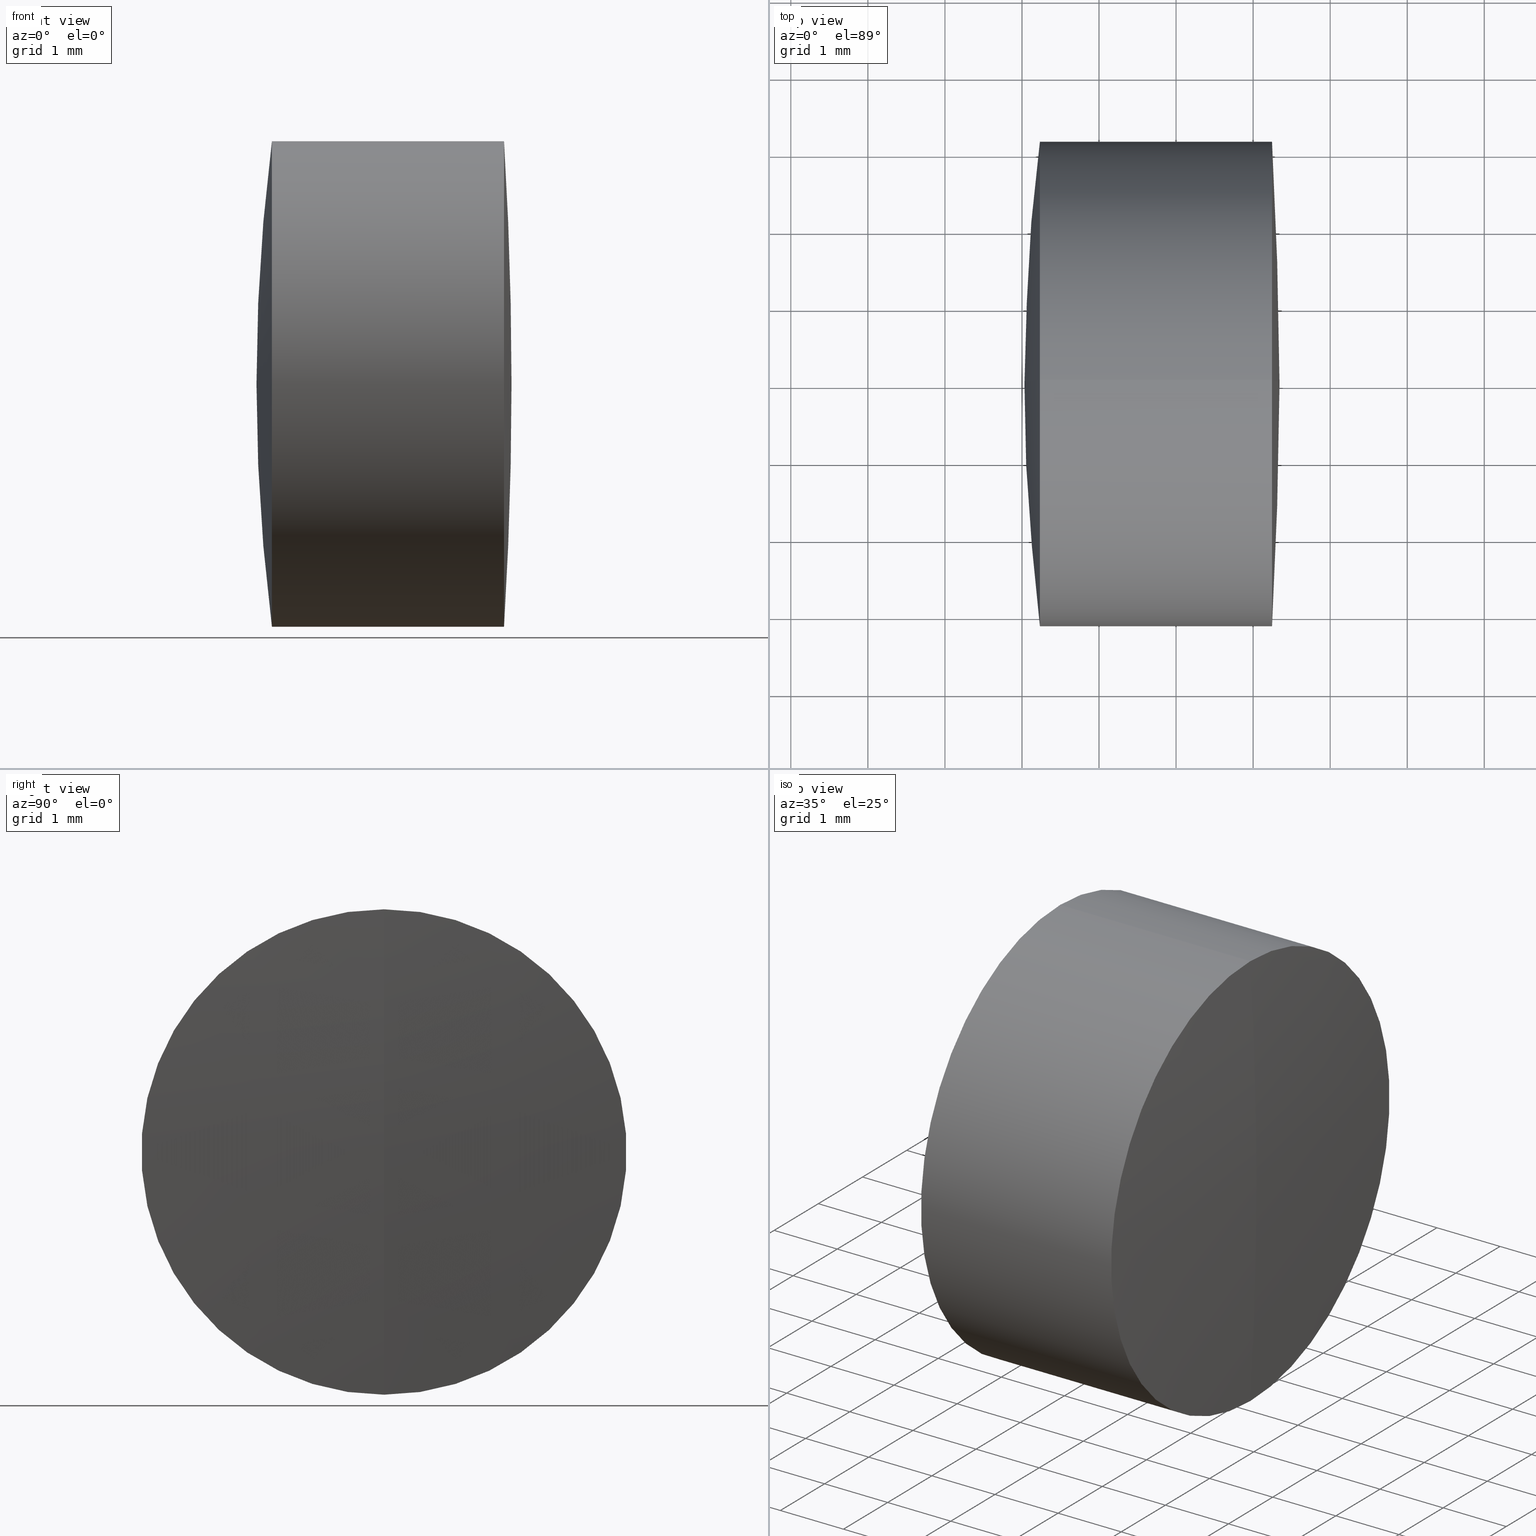
[diagram: canonical four-view strip — front | top / right | iso, engineering-drawing reading convention]
A machine part, canonical four-view strip (front | top / right | iso — engineering-drawing reading convention). The complete STEP part file that produces these views, byte-faithful:
ISO-10303-21;
HEADER;
FILE_DESCRIPTION (( 'STEP AP214' ),
    '1' );
FILE_NAME ('145012.STEP',
    '2019-05-07T06:51:21',
    ( 'user' ),
    ( '΢���й�' ),
    'SwSTEP 2.0',
    'SolidWorks 2016',
    '' );
FILE_SCHEMA (( 'AUTOMOTIVE_DESIGN' ));
ENDSEC;

DATA;
#1 = DIRECTION ( 'NONE',  ( 0.0000000000000000000, 1.000000000000000000, 0.0000000000000000000 ) ) ;
#2 = CIRCLE ( 'NONE', #291, 3.150000000000007000 ) ;
#3 = PRODUCT_DEFINITION_FORMATION_WITH_SPECIFIED_SOURCE ( '�κ�', '', #65, .NOT_KNOWN. ) ;
#4 = DIRECTION ( 'NONE',  ( 0.0000000000000000000, 0.0000000000000000000, 1.000000000000000000 ) ) ;
#5 = EDGE_LOOP ( 'NONE', ( #96, #287, #328 ) ) ;
#6 = CARTESIAN_POINT ( 'NONE',  ( 9.232637584155448000, -3.857637417314168100E-016, 3.150000000000004400 ) ) ;
#7 = MECHANICAL_DESIGN_GEOMETRIC_PRESENTATION_REPRESENTATION (  '', ( #283 ), #18 ) ;
#8 = DIRECTION ( 'NONE',  ( 0.0000000000000000000, 0.0000000000000000000, 1.000000000000000000 ) ) ;
#9 = DIRECTION ( 'NONE',  ( 0.0000000000000000000, -1.000000000000000000, 0.0000000000000000000 ) ) ;
#10 = EDGE_CURVE ( 'NONE', #230, #227, #37, .T. ) ;
#11 = EDGE_CURVE ( 'NONE', #227, #38, #315, .T. ) ;
#12 = ADVANCED_FACE ( 'NONE', ( #102 ), #176, .T. ) ;
#13 = ORIENTED_EDGE ( 'NONE', *, *, #10, .T. ) ;
#14 =( LENGTH_UNIT ( ) NAMED_UNIT ( * ) SI_UNIT ( .MILLI., .METRE. ) );
#15 = ORIENTED_EDGE ( 'NONE', *, *, #189, .F. ) ;
#16 = VERTEX_POINT ( 'NONE', #324 ) ;
#17 = VERTEX_POINT ( 'NONE', #128 ) ;
#18 =( GEOMETRIC_REPRESENTATION_CONTEXT ( 3 ) GLOBAL_UNCERTAINTY_ASSIGNED_CONTEXT ( ( #51 ) ) GLOBAL_UNIT_ASSIGNED_CONTEXT ( ( #14, #207, #184 ) ) REPRESENTATION_CONTEXT ( 'NONE', 'WORKASPACE' ) );
#19 = ORIENTED_EDGE ( 'NONE', *, *, #265, .T. ) ;
#20 = AXIS2_PLACEMENT_3D ( 'NONE', #55, #212, #28 ) ;
#21 = EDGE_CURVE ( 'NONE', #227, #289, #326, .T. ) ;
#22 = ORIENTED_EDGE ( 'NONE', *, *, #316, .F. ) ;
#23 = CARTESIAN_POINT ( 'NONE',  ( 10.62920690864784300, 0.0000000000000000000, 3.149999999999999900 ) ) ;
#24 =( NAMED_UNIT ( * ) PLANE_ANGLE_UNIT ( ) SI_UNIT ( $, .RADIAN. ) );
#25 = DIRECTION ( 'NONE',  ( 0.0000000000000000000, 0.0000000000000000000, 1.000000000000000000 ) ) ;
#26 = DIRECTION ( 'NONE',  ( 0.0000000000000000000, 1.000000000000000000, 0.0000000000000000000 ) ) ;
#27 = DIRECTION ( 'NONE',  ( 0.0000000000000000000, -1.224646799147353200E-016, 1.000000000000000000 ) ) ;
#28 = DIRECTION ( 'NONE',  ( 0.0000000000000000000, 0.0000000000000000000, 1.000000000000000000 ) ) ;
#29 = CARTESIAN_POINT ( 'NONE',  ( 12.24520291692307500, 0.0000000000000000000, 0.0000000000000000000 ) ) ;
#30 = ORIENTED_EDGE ( 'NONE', *, *, #203, .T. ) ;
#31 = ORIENTED_EDGE ( 'NONE', *, *, #170, .F. ) ;
#32 = ADVANCED_FACE ( 'NONE', ( #226 ), #43, .T. ) ;
#33 = PRODUCT_RELATED_PRODUCT_CATEGORY ( 'part', '', ( #65 ) ) ;
#34 = SURFACE_STYLE_USAGE ( .BOTH. , #196 ) ;
#35 = AXIS2_PLACEMENT_3D ( 'NONE', #215, #9, #192 ) ;
#36 = SPHERICAL_SURFACE ( 'NONE', #164, 51.06600000000000300 ) ;
#37 = LINE ( 'NONE', #274, #257 ) ;
#38 = VERTEX_POINT ( 'NONE', #6 ) ;
#39 = AXIS2_PLACEMENT_3D ( 'NONE', #78, #240, #52 ) ;
#40 = CIRCLE ( 'NONE', #241, 3.149999999999999900 ) ;
#41 = CYLINDRICAL_SURFACE ( 'NONE', #313, 3.150000000000002600 ) ;
#42 = SURFACE_STYLE_FILL_AREA ( #98 ) ;
#43 = SPHERICAL_SURFACE ( 'NONE', #89, 15.99499999999999600 ) ;
#44 = COLOUR_RGB ( '',1.000000000000000000, 1.000000000000000000, 1.000000000000000000 ) ;
#45 = ORIENTED_EDGE ( 'NONE', *, *, #225, .T. ) ;
#46 = SPHERICAL_SURFACE ( 'NONE', #263, 15.99499999999999600 ) ;
#47 = DIRECTION ( 'NONE',  ( 0.0000000000000000000, 0.0000000000000000000, 1.000000000000000000 ) ) ;
#48 = CARTESIAN_POINT ( 'NONE',  ( 10.62920690864783800, 0.0000000000000000000, 3.150000000000012300 ) ) ;
#49 = SURFACE_STYLE_USAGE ( .BOTH. , #208 ) ;
#50 = DIRECTION ( 'NONE',  ( -1.000000000000000000, -0.0000000000000000000, -0.0000000000000000000 ) ) ;
#51 = UNCERTAINTY_MEASURE_WITH_UNIT (LENGTH_MEASURE( 1.000000000000000100E-005 ), #14, 'distance_accuracy_value', 'NONE');
#52 = DIRECTION ( 'NONE',  ( 0.0000000000000000000, 0.0000000000000000000, 1.000000000000000000 ) ) ;
#53 = FACE_OUTER_BOUND ( 'NONE', #177, .T. ) ;
#54 = CARTESIAN_POINT ( 'NONE',  ( -5.052550805333070500, 0.0000000000000000000, 3.362352185866676200E-016 ) ) ;
#55 = CARTESIAN_POINT ( 'NONE',  ( 9.232637584155448000, 0.0000000000000000000, 0.0000000000000000000 ) ) ;
#56 = AXIS2_PLACEMENT_3D ( 'NONE', #132, #329, #104 ) ;
#57 = AXIS2_PLACEMENT_3D ( 'NONE', #191, #131, #188 ) ;
#58 = FACE_OUTER_BOUND ( 'NONE', #77, .T. ) ;
#59 = ADVANCED_FACE ( 'NONE', ( #58 ), #286, .T. ) ;
#60 = APPLICATION_PROTOCOL_DEFINITION ( 'draft international standard', 'automotive_design', 1998, #84 ) ;
#61 = CLOSED_SHELL ( 'NONE', ( #108, #276, #250, #306, #82, #166 ) ) ;
#62 =( NAMED_UNIT ( * ) PLANE_ANGLE_UNIT ( ) SI_UNIT ( $, .RADIAN. ) );
#63 = FILL_AREA_STYLE_COLOUR ( '', #178 ) ;
#64 = DIRECTION ( 'NONE',  ( -0.0000000000000000000, -1.000000000000000000, -0.0000000000000000000 ) ) ;
#65 = PRODUCT ( '145012', '145012', '', ( #252 ) ) ;
#66 = ORIENTED_EDGE ( 'NONE', *, *, #301, .F. ) ;
#67 = LINE ( 'NONE', #87, #220 ) ;
#68 = AXIS2_PLACEMENT_3D ( 'NONE', #29, #161, #8 ) ;
#69 = AXIS2_PLACEMENT_3D ( 'NONE', #268, #73, #234 ) ;
#70 = DIRECTION ( 'NONE',  ( -1.000000000000000000, -0.0000000000000000000, -0.0000000000000000000 ) ) ;
#71 = DIRECTION ( 'NONE',  ( 0.0000000000000000000, -1.000000000000000000, 0.0000000000000000000 ) ) ;
#72 = ORIENTED_EDGE ( 'NONE', *, *, #115, .F. ) ;
#73 = DIRECTION ( 'NONE',  ( 0.0000000000000000000, -1.000000000000000000, 0.0000000000000000000 ) ) ;
#74 = DIRECTION ( 'NONE',  ( -1.000000000000000000, -0.0000000000000000000, -0.0000000000000000000 ) ) ;
#75 = CARTESIAN_POINT ( 'NONE',  ( 12.24520291692307500, 3.857637417314163700E-016, -3.149999999999997700 ) ) ;
#76 = DIRECTION ( 'NONE',  ( 0.0000000000000000000, 1.224646799147353200E-016, -1.000000000000000000 ) ) ;
#77 = EDGE_LOOP ( 'NONE', ( #66, #138, #119 ) ) ;
#78 = CARTESIAN_POINT ( 'NONE',  ( 33.91544919466692700, 0.0000000000000000000, 6.675445889808647100E-017 ) ) ;
#79 = DIRECTION ( 'NONE',  ( -1.000000000000000000, -0.0000000000000000000, -0.0000000000000000000 ) ) ;
#80 = DIRECTION ( 'NONE',  ( 0.0000000000000000000, 0.0000000000000000000, 1.000000000000000000 ) ) ;
#81 = APPLICATION_CONTEXT ( 'automotive_design' ) ;
#82 = ADVANCED_FACE ( 'NONE', ( #204 ), #314, .T. ) ;
#83 = VERTEX_POINT ( 'NONE', #75 ) ;
#84 = APPLICATION_CONTEXT ( 'automotive_design' ) ;
#85 = SURFACE_STYLE_USAGE ( .BOTH. , #219 ) ;
#86 = CYLINDRICAL_SURFACE ( 'NONE', #201, 3.149999999999999900 ) ;
#87 = CARTESIAN_POINT ( 'NONE',  ( -0.5519199926577972300, 0.0000000000000000000, 3.150000000000002600 ) ) ;
#88 = EDGE_LOOP ( 'NONE', ( #305, #199, #273 ) ) ;
#89 = AXIS2_PLACEMENT_3D ( 'NONE', #214, #298, #211 ) ;
#90 = PRODUCT_DEFINITION_CONTEXT ( 'detailed design', #84, 'design' ) ;
#91 = EDGE_LOOP ( 'NONE', ( #72, #317, #245 ) ) ;
#92 = CIRCLE ( 'NONE', #299, 3.150000000000007000 ) ;
#93 = AXIS2_PLACEMENT_3D ( 'NONE', #139, #162, #300 ) ;
#94 = EDGE_CURVE ( 'NONE', #290, #83, #121, .T. ) ;
#95 = ORIENTED_EDGE ( 'NONE', *, *, #21, .F. ) ;
#96 = ORIENTED_EDGE ( 'NONE', *, *, #318, .F. ) ;
#97 = CARTESIAN_POINT ( 'NONE',  ( 10.62920690864784300, 3.857637417314162700E-016, -3.149999999999999900 ) ) ;
#98 = FILL_AREA_STYLE ('',( #238 ) ) ;
#99 = CARTESIAN_POINT ( 'NONE',  ( -0.8160621761658039000, 0.0000000000000000000, 3.149999999999999900 ) ) ;
#100 = CIRCLE ( 'NONE', #69, 51.06600000000000300 ) ;
#101 = DIRECTION ( 'NONE',  ( -1.000000000000000000, -0.0000000000000000000, -0.0000000000000000000 ) ) ;
#102 = FACE_OUTER_BOUND ( 'NONE', #346, .T. ) ;
#103 = CIRCLE ( 'NONE', #111, 15.99499999999999600 ) ;
#104 = DIRECTION ( 'NONE',  ( 0.0000000000000000000, 0.0000000000000000000, 1.000000000000000000 ) ) ;
#105 = ORIENTED_EDGE ( 'NONE', *, *, #316, .T. ) ;
#106 = CARTESIAN_POINT ( 'NONE',  ( 10.62920690864784000, 0.0000000000000000000, 0.0000000000000000000 ) ) ;
#107 = AXIS2_PLACEMENT_3D ( 'NONE', #159, #26, #322 ) ;
#108 = ADVANCED_FACE ( 'NONE', ( #243 ), #36, .T. ) ;
#109 =( LENGTH_UNIT ( ) NAMED_UNIT ( * ) SI_UNIT ( .MILLI., .METRE. ) );
#110 = MANIFOLD_SOLID_BREP ( '��ת1', #282 ) ;
#111 = AXIS2_PLACEMENT_3D ( 'NONE', #54, #187, #27 ) ;
#112 =( NAMED_UNIT ( * ) SI_UNIT ( $, .STERADIAN. ) SOLID_ANGLE_UNIT ( ) );
#113 = UNCERTAINTY_MEASURE_WITH_UNIT (LENGTH_MEASURE( 1.000000000000000100E-005 ), #235, 'distance_accuracy_value', 'NONE');
#114 = DIRECTION ( 'NONE',  ( -1.000000000000000000, -0.0000000000000000000, -0.0000000000000000000 ) ) ;
#115 = EDGE_CURVE ( 'NONE', #290, #16, #100, .T. ) ;
#116 = DIRECTION ( 'NONE',  ( 0.0000000000000000000, 0.0000000000000000000, 1.000000000000000000 ) ) ;
#117 = EDGE_LOOP ( 'NONE', ( #206, #45, #163 ) ) ;
#118 = SURFACE_STYLE_FILL_AREA ( #222 ) ;
#119 = ORIENTED_EDGE ( 'NONE', *, *, #265, .F. ) ;
#120 = AXIS2_PLACEMENT_3D ( 'NONE', #156, #270, #183 ) ;
#121 = CIRCLE ( 'NONE', #120, 51.06600000000000300 ) ;
#122 = CARTESIAN_POINT ( 'NONE',  ( -5.052550805333070500, 0.0000000000000000000, 3.362352185866676200E-016 ) ) ;
#123 = VERTEX_POINT ( 'NONE', #154 ) ;
#124 =( GEOMETRIC_REPRESENTATION_CONTEXT ( 3 ) GLOBAL_UNCERTAINTY_ASSIGNED_CONTEXT ( ( #343 ) ) GLOBAL_UNIT_ASSIGNED_CONTEXT ( ( #109, #134, #167 ) ) REPRESENTATION_CONTEXT ( 'NONE', 'WORKASPACE' ) );
#125 = DIRECTION ( 'NONE',  ( 0.0000000000000000000, 0.0000000000000000000, 1.000000000000000000 ) ) ;
#126 = DIRECTION ( 'NONE',  ( -1.000000000000000000, -0.0000000000000000000, -0.0000000000000000000 ) ) ;
#127 = SPHERICAL_SURFACE ( 'NONE', #169, 24.88300000000001000 ) ;
#128 = CARTESIAN_POINT ( 'NONE',  ( 10.94244919466692400, 0.0000000000000000000, 1.315646496204763000E-015 ) ) ;
#129 = DIRECTION ( 'NONE',  ( 0.0000000000000000000, -1.000000000000000000, -1.224646799147353200E-016 ) ) ;
#130 = EDGE_CURVE ( 'NONE', #230, #145, #256, .T. ) ;
#131 = DIRECTION ( 'NONE',  ( -0.0000000000000000000, -1.000000000000000000, -0.0000000000000000000 ) ) ;
#132 = CARTESIAN_POINT ( 'NONE',  ( 9.232637584155448000, 0.0000000000000000000, 0.0000000000000000000 ) ) ;
#133 = ORIENTED_EDGE ( 'NONE', *, *, #130, .T. ) ;
#134 =( NAMED_UNIT ( * ) PLANE_ANGLE_UNIT ( ) SI_UNIT ( $, .RADIAN. ) );
#135 = CARTESIAN_POINT ( 'NONE',  ( 0.0000000000000000000, 0.0000000000000000000, 0.0000000000000000000 ) ) ;
#136 = VECTOR ( 'NONE', #74, 1000.000000000000000 ) ;
#137 = CARTESIAN_POINT ( 'NONE',  ( -5.052550805333070500, 0.0000000000000000000, 3.362352185866676200E-016 ) ) ;
#138 = ORIENTED_EDGE ( 'NONE', *, *, #318, .T. ) ;
#139 = CARTESIAN_POINT ( 'NONE',  ( -5.052550805333070500, 0.0000000000000000000, 3.362352185866676200E-016 ) ) ;
#140 = DIRECTION ( 'NONE',  ( 0.0000000000000000000, 0.0000000000000000000, 1.000000000000000000 ) ) ;
#141 = AXIS2_PLACEMENT_3D ( 'NONE', #297, #271, #185 ) ;
#142 = VERTEX_POINT ( 'NONE', #48 ) ;
#143 = LINE ( 'NONE', #99, #158 ) ;
#144 = AXIS2_PLACEMENT_3D ( 'NONE', #323, #129, #76 ) ;
#145 = VERTEX_POINT ( 'NONE', #23 ) ;
#146 = AXIS2_PLACEMENT_3D ( 'NONE', #205, #320, #232 ) ;
#147 = EDGE_CURVE ( 'NONE', #16, #83, #175, .T. ) ;
#148 = SPHERICAL_SURFACE ( 'NONE', #146, 51.06600000000000300 ) ;
#149 = VERTEX_POINT ( 'NONE', #294 ) ;
#150 = ORIENTED_EDGE ( 'NONE', *, *, #147, .T. ) ;
#151 = DIRECTION ( 'NONE',  ( 0.0000000000000000000, 0.0000000000000000000, 1.000000000000000000 ) ) ;
#152 = SPHERICAL_SURFACE ( 'NONE', #93, 15.99499999999999600 ) ;
#153 = DIRECTION ( 'NONE',  ( -1.000000000000000000, -0.0000000000000000000, -0.0000000000000000000 ) ) ;
#154 = CARTESIAN_POINT ( 'NONE',  ( 10.94244919466692400, 0.0000000000000000000, 1.315646496204763000E-015 ) ) ;
#155 = CARTESIAN_POINT ( 'NONE',  ( 10.62920690864784000, 0.0000000000000000000, 0.0000000000000000000 ) ) ;
#156 = CARTESIAN_POINT ( 'NONE',  ( -38.72355080533307600, 0.0000000000000000000, 0.0000000000000000000 ) ) ;
#157 = ORIENTED_EDGE ( 'NONE', *, *, #115, .T. ) ;
#158 = VECTOR ( 'NONE', #79, 1000.000000000000000 ) ;
#159 = CARTESIAN_POINT ( 'NONE',  ( -5.052550805333070500, 0.0000000000000000000, 3.362352185866676200E-016 ) ) ;
#160 = DIRECTION ( 'NONE',  ( 0.0000000000000000000, 1.000000000000000000, 0.0000000000000000000 ) ) ;
#161 = DIRECTION ( 'NONE',  ( -1.000000000000000000, -0.0000000000000000000, -0.0000000000000000000 ) ) ;
#162 = DIRECTION ( 'NONE',  ( 0.0000000000000000000, 1.000000000000000000, 0.0000000000000000000 ) ) ;
#163 = ORIENTED_EDGE ( 'NONE', *, *, #189, .T. ) ;
#164 = AXIS2_PLACEMENT_3D ( 'NONE', #209, #160, #125 ) ;
#165 = ORIENTED_EDGE ( 'NONE', *, *, #203, .F. ) ;
#166 = ADVANCED_FACE ( 'NONE', ( #53 ), #148, .T. ) ;
#167 =( NAMED_UNIT ( * ) SI_UNIT ( $, .STERADIAN. ) SOLID_ANGLE_UNIT ( ) );
#168 = AXIS2_PLACEMENT_3D ( 'NONE', #213, #244, #4 ) ;
#169 = AXIS2_PLACEMENT_3D ( 'NONE', #224, #64, #197 ) ;
#170 = EDGE_CURVE ( 'NONE', #83, #149, #174, .T. ) ;
#171 = EDGE_LOOP ( 'NONE', ( #310, #133, #337, #229 ) ) ;
#172 = EDGE_LOOP ( 'NONE', ( #277, #190, #302 ) ) ;
#173 = CIRCLE ( 'NONE', #35, 15.99499999999999600 ) ;
#174 = LINE ( 'NONE', #321, #136 ) ;
#175 = CIRCLE ( 'NONE', #275, 3.149999999999997700 ) ;
#176 = SPHERICAL_SURFACE ( 'NONE', #57, 24.88300000000001000 ) ;
#177 = EDGE_LOOP ( 'NONE', ( #269, #157, #22 ) ) ;
#178 = COLOUR_RGB ( '',1.000000000000000000, 1.000000000000000000, 1.000000000000000000 ) ;
#179 = STYLED_ITEM ( 'NONE', ( #344 ), #110 ) ;
#180 = CARTESIAN_POINT ( 'NONE',  ( 10.62920690864784300, 0.0000000000000000000, 0.0000000000000000000 ) ) ;
#181 =( NAMED_UNIT ( * ) SI_UNIT ( $, .STERADIAN. ) SOLID_ANGLE_UNIT ( ) );
#182 = DIRECTION ( 'NONE',  ( 1.000000000000000000, 0.0000000000000000000, 0.0000000000000000000 ) ) ;
#183 = DIRECTION ( 'NONE',  ( 0.0000000000000000000, -1.224646799147353000E-016, 1.000000000000000000 ) ) ;
#184 =( NAMED_UNIT ( * ) SI_UNIT ( $, .STERADIAN. ) SOLID_ANGLE_UNIT ( ) );
#185 = DIRECTION ( 'NONE',  ( 0.0000000000000000000, 0.0000000000000000000, 1.000000000000000000 ) ) ;
#186 = AXIS2_PLACEMENT_3D ( 'NONE', #267, #71, #233 ) ;
#187 = DIRECTION ( 'NONE',  ( -0.0000000000000000000, 1.000000000000000000, 1.224646799147353200E-016 ) ) ;
#188 = DIRECTION ( 'NONE',  ( 0.0000000000000000000, 0.0000000000000000000, -1.000000000000000000 ) ) ;
#189 = EDGE_CURVE ( 'NONE', #142, #149, #2, .T. ) ;
#190 = ORIENTED_EDGE ( 'NONE', *, *, #246, .T. ) ;
#191 = CARTESIAN_POINT ( 'NONE',  ( 33.91544919466692700, 0.0000000000000000000, 6.675445889808647100E-017 ) ) ;
#192 = DIRECTION ( 'NONE',  ( 0.0000000000000000000, 0.0000000000000000000, -1.000000000000000000 ) ) ;
#193 = ADVANCED_FACE ( 'NONE', ( #272 ), #86, .T. ) ;
#194 = APPLICATION_PROTOCOL_DEFINITION ( 'draft international standard', 'automotive_design', 1998, #81 ) ;
#195 = ORIENTED_EDGE ( 'NONE', *, *, #170, .T. ) ;
#196 = SURFACE_SIDE_STYLE ('',( #118 ) ) ;
#197 = DIRECTION ( 'NONE',  ( 0.0000000000000000000, 0.0000000000000000000, -1.000000000000000000 ) ) ;
#198 = PRESENTATION_LAYER_ASSIGNMENT (  '', '', ( #179 ) ) ;
#199 = ORIENTED_EDGE ( 'NONE', *, *, #303, .T. ) ;
#200 = STYLED_ITEM ( 'NONE', ( #258 ), #280 ) ;
#201 = AXIS2_PLACEMENT_3D ( 'NONE', #296, #126, #25 ) ;
#202 = EDGE_LOOP ( 'NONE', ( #31, #105, #30, #292 ) ) ;
#203 = EDGE_CURVE ( 'NONE', #16, #142, #67, .T. ) ;
#204 = FACE_OUTER_BOUND ( 'NONE', #202, .T. ) ;
#205 = CARTESIAN_POINT ( 'NONE',  ( -38.72355080533307600, 0.0000000000000000000, 0.0000000000000000000 ) ) ;
#206 = ORIENTED_EDGE ( 'NONE', *, *, #246, .F. ) ;
#207 =( NAMED_UNIT ( * ) PLANE_ANGLE_UNIT ( ) SI_UNIT ( $, .RADIAN. ) );
#208 = SURFACE_SIDE_STYLE ('',( #42 ) ) ;
#209 = CARTESIAN_POINT ( 'NONE',  ( -38.72355080533307600, 0.0000000000000000000, 0.0000000000000000000 ) ) ;
#210 = UNCERTAINTY_MEASURE_WITH_UNIT (LENGTH_MEASURE( 1.000000000000000100E-005 ), #253, 'distance_accuracy_value', 'NONE');
#211 = DIRECTION ( 'NONE',  ( 0.0000000000000000000, 0.0000000000000000000, 1.000000000000000000 ) ) ;
#212 = DIRECTION ( 'NONE',  ( -1.000000000000000000, -0.0000000000000000000, -0.0000000000000000000 ) ) ;
#213 = CARTESIAN_POINT ( 'NONE',  ( -0.8160621761658039000, 0.0000000000000000000, 0.0000000000000000000 ) ) ;
#214 = CARTESIAN_POINT ( 'NONE',  ( -5.052550805333070500, 0.0000000000000000000, 3.362352185866676200E-016 ) ) ;
#215 = CARTESIAN_POINT ( 'NONE',  ( -5.052550805333070500, 0.0000000000000000000, 3.362352185866676200E-016 ) ) ;
#216 = MECHANICAL_DESIGN_GEOMETRIC_PRESENTATION_REPRESENTATION (  '', ( #179 ), #231 ) ;
#217 = ADVANCED_FACE ( 'NONE', ( #288 ), #127, .T. ) ;
#218 = ORIENTED_EDGE ( 'NONE', *, *, #11, .T. ) ;
#219 = SURFACE_SIDE_STYLE ('',( #327 ) ) ;
#220 = VECTOR ( 'NONE', #284, 1000.000000000000000 ) ;
#221 = PRESENTATION_LAYER_ASSIGNMENT (  '', '', ( #200 ) ) ;
#222 = FILL_AREA_STYLE ('',( #63 ) ) ;
#223 = AXIS2_PLACEMENT_3D ( 'NONE', #122, #239, #338 ) ;
#224 = CARTESIAN_POINT ( 'NONE',  ( 33.91544919466692700, 0.0000000000000000000, 6.675445889808647100E-017 ) ) ;
#225 = EDGE_CURVE ( 'NONE', #17, #142, #260, .T. ) ;
#226 = FACE_OUTER_BOUND ( 'NONE', #5, .T. ) ;
#227 = VERTEX_POINT ( 'NONE', #255 ) ;
#228 = CIRCLE ( 'NONE', #56, 3.149999999999999900 ) ;
#229 = ORIENTED_EDGE ( 'NONE', *, *, #11, .F. ) ;
#230 = VERTEX_POINT ( 'NONE', #97 ) ;
#231 =( GEOMETRIC_REPRESENTATION_CONTEXT ( 3 ) GLOBAL_UNCERTAINTY_ASSIGNED_CONTEXT ( ( #113 ) ) GLOBAL_UNIT_ASSIGNED_CONTEXT ( ( #235, #24, #181 ) ) REPRESENTATION_CONTEXT ( 'NONE', 'WORKASPACE' ) );
#232 = DIRECTION ( 'NONE',  ( 0.0000000000000000000, 0.0000000000000000000, 1.000000000000000000 ) ) ;
#233 = DIRECTION ( 'NONE',  ( 0.0000000000000000000, 0.0000000000000000000, -1.000000000000000000 ) ) ;
#234 = DIRECTION ( 'NONE',  ( 0.0000000000000000000, 0.0000000000000000000, -1.000000000000000000 ) ) ;
#235 =( LENGTH_UNIT ( ) NAMED_UNIT ( * ) SI_UNIT ( .MILLI., .METRE. ) );
#236 = DIRECTION ( 'NONE',  ( 0.0000000000000000000, 0.0000000000000000000, 1.000000000000000000 ) ) ;
#237 = MECHANICAL_DESIGN_GEOMETRIC_PRESENTATION_REPRESENTATION (  '', ( #200 ), #262 ) ;
#238 = FILL_AREA_STYLE_COLOUR ( '', #325 ) ;
#239 = DIRECTION ( 'NONE',  ( -0.0000000000000000000, 1.000000000000000000, 1.224646799147353200E-016 ) ) ;
#240 = DIRECTION ( 'NONE',  ( 0.0000000000000000000, 1.000000000000000000, -0.0000000000000000000 ) ) ;
#241 = AXIS2_PLACEMENT_3D ( 'NONE', #308, #114, #281 ) ;
#242 = CIRCLE ( 'NONE', #144, 24.88300000000001000 ) ;
#243 = FACE_OUTER_BOUND ( 'NONE', #91, .T. ) ;
#244 = DIRECTION ( 'NONE',  ( -1.000000000000000000, -0.0000000000000000000, -0.0000000000000000000 ) ) ;
#245 = ORIENTED_EDGE ( 'NONE', *, *, #147, .F. ) ;
#246 = EDGE_CURVE ( 'NONE', #17, #149, #311, .T. ) ;
#247 = FACE_OUTER_BOUND ( 'NONE', #342, .T. ) ;
#248 = ORIENTED_EDGE ( 'NONE', *, *, #339, .T. ) ;
#249 = PRODUCT_DEFINITION_SHAPE ( 'NONE', 'NONE',  #333 ) ;
#250 = ADVANCED_FACE ( 'NONE', ( #330 ), #46, .F. ) ;
#251 = FACE_OUTER_BOUND ( 'NONE', #117, .T. ) ;
#252 = PRODUCT_CONTEXT ( 'NONE', #81, 'mechanical' ) ;
#253 =( LENGTH_UNIT ( ) NAMED_UNIT ( * ) SI_UNIT ( .MILLI., .METRE. ) );
#254 = CARTESIAN_POINT ( 'NONE',  ( 9.032449194666918800, 0.0000000000000000000, -1.456889856261093500E-015 ) ) ;
#255 = CARTESIAN_POINT ( 'NONE',  ( 9.232637584155448000, 0.0000000000000000000, -3.150000000000004400 ) ) ;
#256 = CIRCLE ( 'NONE', #261, 3.149999999999999900 ) ;
#257 = VECTOR ( 'NONE', #101, 1000.000000000000000 ) ;
#258 = PRESENTATION_STYLE_ASSIGNMENT (( #85 ) ) ;
#259 = ORIENTED_EDGE ( 'NONE', *, *, #303, .F. ) ;
#260 = CIRCLE ( 'NONE', #186, 15.99499999999999600 ) ;
#261 = AXIS2_PLACEMENT_3D ( 'NONE', #180, #345, #151 ) ;
#262 =( GEOMETRIC_REPRESENTATION_CONTEXT ( 3 ) GLOBAL_UNCERTAINTY_ASSIGNED_CONTEXT ( ( #210 ) ) GLOBAL_UNIT_ASSIGNED_CONTEXT ( ( #253, #62, #112 ) ) REPRESENTATION_CONTEXT ( 'NONE', 'WORKASPACE' ) );
#263 = AXIS2_PLACEMENT_3D ( 'NONE', #137, #1, #140 ) ;
#264 = EDGE_LOOP ( 'NONE', ( #150, #195, #15, #165 ) ) ;
#265 = EDGE_CURVE ( 'NONE', #145, #230, #40, .T. ) ;
#266 = CARTESIAN_POINT ( 'NONE',  ( 12.24520291692307500, 0.0000000000000000000, 0.0000000000000000000 ) ) ;
#267 = CARTESIAN_POINT ( 'NONE',  ( -5.052550805333070500, 0.0000000000000000000, 3.362352185866676200E-016 ) ) ;
#268 = CARTESIAN_POINT ( 'NONE',  ( -38.72355080533307600, 0.0000000000000000000, 0.0000000000000000000 ) ) ;
#269 = ORIENTED_EDGE ( 'NONE', *, *, #94, .F. ) ;
#270 = DIRECTION ( 'NONE',  ( -0.0000000000000000000, 1.000000000000000000, 1.224646799147353200E-016 ) ) ;
#271 = DIRECTION ( 'NONE',  ( -1.000000000000000000, -0.0000000000000000000, -0.0000000000000000000 ) ) ;
#272 = FACE_OUTER_BOUND ( 'NONE', #171, .T. ) ;
#273 = ORIENTED_EDGE ( 'NONE', *, *, #21, .T. ) ;
#274 = CARTESIAN_POINT ( 'NONE',  ( -0.8160621761658039000, 3.857637417314162700E-016, -3.149999999999999900 ) ) ;
#275 = AXIS2_PLACEMENT_3D ( 'NONE', #266, #70, #47 ) ;
#276 = ADVANCED_FACE ( 'NONE', ( #319 ), #41, .T. ) ;
#277 = ORIENTED_EDGE ( 'NONE', *, *, #225, .F. ) ;
#278 = MANIFOLD_SOLID_BREP ( '��ת3', #61 ) ;
#279 = PRESENTATION_STYLE_ASSIGNMENT (( #34 ) ) ;
#280 = ADVANCED_BREP_SHAPE_REPRESENTATION ( '145012', ( #110, #278, #312 ), #124 ) ;
#281 = DIRECTION ( 'NONE',  ( 0.0000000000000000000, 0.0000000000000000000, 1.000000000000000000 ) ) ;
#282 = CLOSED_SHELL ( 'NONE', ( #59, #331, #12, #217, #193, #32 ) ) ;
#283 = STYLED_ITEM ( 'NONE', ( #279 ), #278 ) ;
#284 = DIRECTION ( 'NONE',  ( -1.000000000000000000, -0.0000000000000000000, -0.0000000000000000000 ) ) ;
#285 = EDGE_CURVE ( 'NONE', #149, #142, #92, .T. ) ;
#286 = SPHERICAL_SURFACE ( 'NONE', #107, 15.99499999999999600 ) ;
#287 = ORIENTED_EDGE ( 'NONE', *, *, #301, .T. ) ;
#288 = FACE_OUTER_BOUND ( 'NONE', #88, .T. ) ;
#289 = VERTEX_POINT ( 'NONE', #254 ) ;
#290 = VERTEX_POINT ( 'NONE', #335 ) ;
#291 = AXIS2_PLACEMENT_3D ( 'NONE', #155, #50, #116 ) ;
#292 = ORIENTED_EDGE ( 'NONE', *, *, #285, .F. ) ;
#293 = CARTESIAN_POINT ( 'NONE',  ( -0.5519199926577972300, 0.0000000000000000000, 0.0000000000000000000 ) ) ;
#294 = CARTESIAN_POINT ( 'NONE',  ( 10.62920690864783800, 3.857637417314177500E-016, -3.150000000000011900 ) ) ;
#295 = CIRCLE ( 'NONE', #68, 3.149999999999997700 ) ;
#296 = CARTESIAN_POINT ( 'NONE',  ( -0.8160621761658039000, 0.0000000000000000000, 0.0000000000000000000 ) ) ;
#297 = CARTESIAN_POINT ( 'NONE',  ( -0.5519199926577972300, 0.0000000000000000000, 0.0000000000000000000 ) ) ;
#298 = DIRECTION ( 'NONE',  ( 0.0000000000000000000, 1.000000000000000000, 0.0000000000000000000 ) ) ;
#299 = AXIS2_PLACEMENT_3D ( 'NONE', #106, #304, #80 ) ;
#300 = DIRECTION ( 'NONE',  ( 0.0000000000000000000, 0.0000000000000000000, 1.000000000000000000 ) ) ;
#301 = EDGE_CURVE ( 'NONE', #123, #145, #173, .T. ) ;
#302 = ORIENTED_EDGE ( 'NONE', *, *, #285, .T. ) ;
#303 = EDGE_CURVE ( 'NONE', #38, #227, #228, .T. ) ;
#304 = DIRECTION ( 'NONE',  ( -1.000000000000000000, -0.0000000000000000000, -0.0000000000000000000 ) ) ;
#305 = ORIENTED_EDGE ( 'NONE', *, *, #339, .F. ) ;
#306 = ADVANCED_FACE ( 'NONE', ( #251 ), #152, .F. ) ;
#307 = DIRECTION ( 'NONE',  ( 0.0000000000000000000, 0.0000000000000000000, 1.000000000000000000 ) ) ;
#308 = CARTESIAN_POINT ( 'NONE',  ( 10.62920690864784300, 0.0000000000000000000, 0.0000000000000000000 ) ) ;
#309 = ORIENTED_EDGE ( 'NONE', *, *, #340, .F. ) ;
#310 = ORIENTED_EDGE ( 'NONE', *, *, #10, .F. ) ;
#311 = CIRCLE ( 'NONE', #223, 15.99499999999999600 ) ;
#312 = AXIS2_PLACEMENT_3D ( 'NONE', #135, #307, #182 ) ;
#313 = AXIS2_PLACEMENT_3D ( 'NONE', #293, #153, #236 ) ;
#314 = CYLINDRICAL_SURFACE ( 'NONE', #141, 3.150000000000002600 ) ;
#315 = CIRCLE ( 'NONE', #20, 3.149999999999999900 ) ;
#316 = EDGE_CURVE ( 'NONE', #83, #16, #295, .T. ) ;
#317 = ORIENTED_EDGE ( 'NONE', *, *, #94, .T. ) ;
#318 = EDGE_CURVE ( 'NONE', #123, #230, #103, .T. ) ;
#319 = FACE_OUTER_BOUND ( 'NONE', #264, .T. ) ;
#320 = DIRECTION ( 'NONE',  ( 0.0000000000000000000, 1.000000000000000000, 0.0000000000000000000 ) ) ;
#321 = CARTESIAN_POINT ( 'NONE',  ( -0.5519199926577972300, 3.857637417314166100E-016, -3.150000000000002600 ) ) ;
#322 = DIRECTION ( 'NONE',  ( 0.0000000000000000000, 0.0000000000000000000, 1.000000000000000000 ) ) ;
#323 = CARTESIAN_POINT ( 'NONE',  ( 33.91544919466692700, 0.0000000000000000000, 6.675445889808647100E-017 ) ) ;
#324 = CARTESIAN_POINT ( 'NONE',  ( 12.24520291692307500, 0.0000000000000000000, 3.149999999999997700 ) ) ;
#325 = COLOUR_RGB ( '',1.000000000000000000, 1.000000000000000000, 1.000000000000000000 ) ;
#326 = CIRCLE ( 'NONE', #39, 24.88300000000001000 ) ;
#327 = SURFACE_STYLE_FILL_AREA ( #332 ) ;
#328 = ORIENTED_EDGE ( 'NONE', *, *, #130, .F. ) ;
#329 = DIRECTION ( 'NONE',  ( -1.000000000000000000, -0.0000000000000000000, -0.0000000000000000000 ) ) ;
#330 = FACE_OUTER_BOUND ( 'NONE', #172, .T. ) ;
#331 = ADVANCED_FACE ( 'NONE', ( #247 ), #334, .T. ) ;
#332 = FILL_AREA_STYLE ('',( #347 ) ) ;
#333 = PRODUCT_DEFINITION ( 'δ֪', '', #3, #90 ) ;
#334 = CYLINDRICAL_SURFACE ( 'NONE', #168, 3.149999999999999900 ) ;
#335 = CARTESIAN_POINT ( 'NONE',  ( 12.34244919466692600, 0.0000000000000000000, 3.126890672262936700E-015 ) ) ;
#336 = PRESENTATION_LAYER_ASSIGNMENT (  '', '', ( #283 ) ) ;
#337 = ORIENTED_EDGE ( 'NONE', *, *, #340, .T. ) ;
#338 = DIRECTION ( 'NONE',  ( 0.0000000000000000000, -1.224646799147353200E-016, 1.000000000000000000 ) ) ;
#339 = EDGE_CURVE ( 'NONE', #38, #289, #242, .T. ) ;
#340 = EDGE_CURVE ( 'NONE', #145, #38, #143, .T. ) ;
#341 = SHAPE_DEFINITION_REPRESENTATION ( #249, #280 ) ;
#342 = EDGE_LOOP ( 'NONE', ( #19, #13, #259, #309 ) ) ;
#343 = UNCERTAINTY_MEASURE_WITH_UNIT (LENGTH_MEASURE( 1.000000000000000100E-005 ), #109, 'distance_accuracy_value', 'NONE');
#344 = PRESENTATION_STYLE_ASSIGNMENT (( #49 ) ) ;
#345 = DIRECTION ( 'NONE',  ( -1.000000000000000000, -0.0000000000000000000, -0.0000000000000000000 ) ) ;
#346 = EDGE_LOOP ( 'NONE', ( #218, #248, #95 ) ) ;
#347 = FILL_AREA_STYLE_COLOUR ( '', #44 ) ;
ENDSEC;
END-ISO-10303-21;
